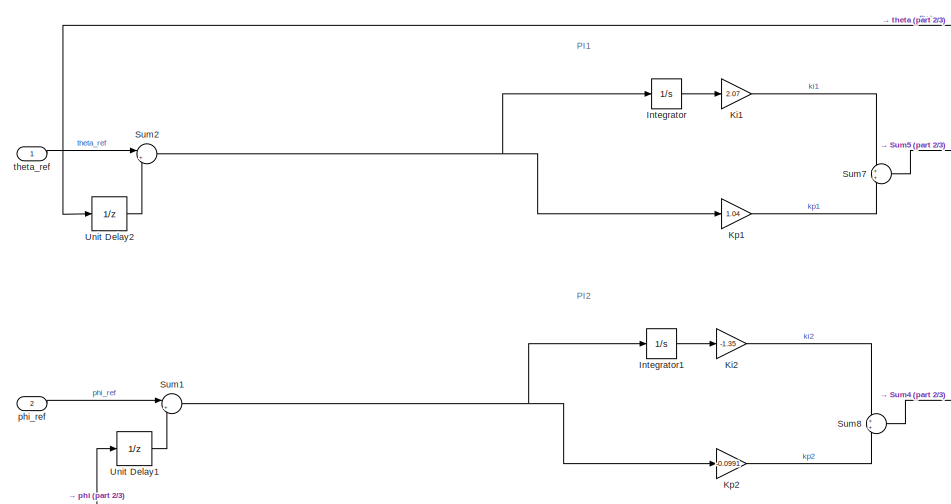
[diagram: root canvas - part 1/3, top left region]
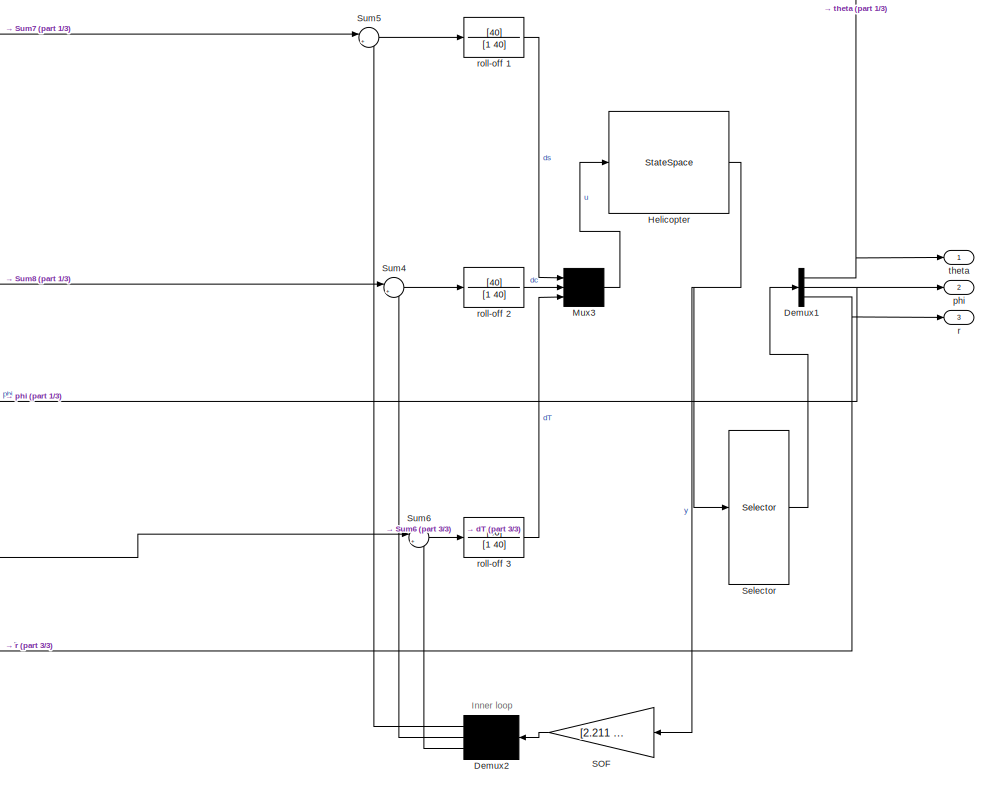
[diagram: root canvas - part 2/3, right side, full height]
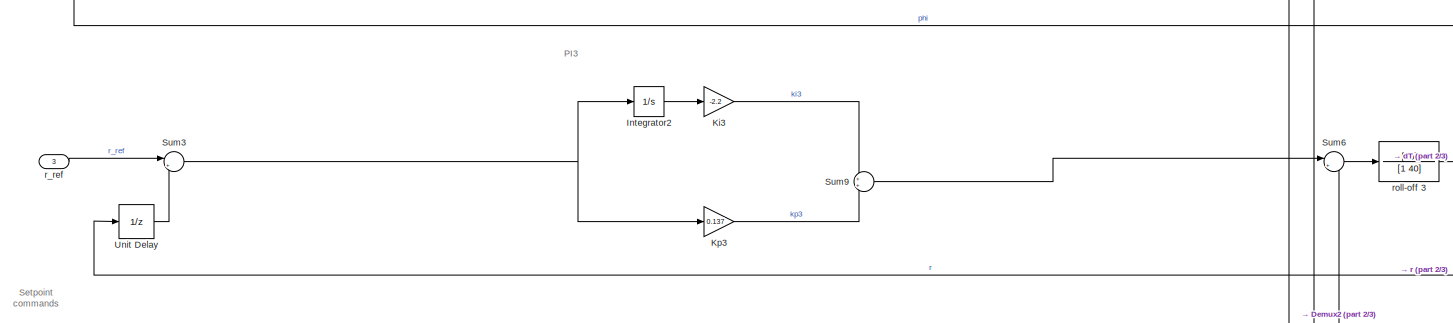
[diagram: root canvas - part 3/3, full width, bottom band]
MODEL slx_b886ddc78d11
KIND model
CONFIG AbsTol = auto
CONFIG EnableMultiTasking = on
CONFIG FixedStep = auto
CONFIG MaxStep = auto
CONFIG MinStep = auto
CONFIG RelTol = 1e-3
CONFIG SampleTimeConstraint = Unconstrained
CONFIG Solver = ode45
CONFIG SolverName = ode45
CONFIG StartTime = 0.0
CONFIG StopTime = 20
WORKSPACE source: mxarray member
WORKSPACE A = [-0.0191 0.0136 0.0405 0 0.001 0.013 0 0.002 0.017 -0.2994 -0.0026 0 ... (64 elements, 8x8)]
WORKSPACE B = [-10.3456 -0.7293 27.09 0 -1.082 -27.2884 0 -4.8969 1.0793 0.0755 -4.7239 0 ... (24 elements, 8x3)]
WORKSPACE Cmeas = [0 0 0 0 0 0 0 0 0 0 0 0 ... (40 elements, 5x8)]
BLOCK [Demux] Demux1
  Outputs = 3
  Ports = [1, 3]
BLOCK [Demux] Demux2
  DisplayOption = none
  Outputs = 3
  Ports = [1, 3]
BLOCK [StateSpace] Helicopter
  A = A
  B = B
  C = Cmeas
  D = zeros(5,3)
  InitialCondition = 0
  Ports = [1, 1]
BLOCK [Integrator] Integrator
  Ports = [1, 1]
BLOCK [Integrator] Integrator1
  Ports = [1, 1]
BLOCK [Integrator] Integrator2
  Ports = [1, 1]
BLOCK [Gain] Ki1
  Gain = 2.07
BLOCK [Gain] Ki2
  Gain = -1.35
BLOCK [Gain] Ki3
  Gain = -2.2
BLOCK [Gain] Kp1
  Gain = 1.04
BLOCK [Gain] Kp2
  Gain = -0.0991
BLOCK [Gain] Kp3
  Gain = 0.137
BLOCK [Mux] Mux3
  DisplayOption = signals
  Inputs = 3
  Ports = [3, 1]
BLOCK [Gain] SOF
  Gain = [2.211 -0.31 -0.00336 0.7854 -0.01518;\n  -0.1923  -1.291 0.0182  -0.08502 -0.1195;\n -0.01936  -0.01205 -1.895 -0.004121 0.06797]
  Multiplication = Matrix(K*u) (u vector)
BLOCK [Selector] Selector
  IndexOptions = Index vector (dialog)
  Indices = [1 2 3]
  InputPortWidth = 3
  OutputSizes = 1
  Ports = [1, 1]
BLOCK [Sum] Sum1
  Inputs = |+-
  Ports = [2, 1]
BLOCK [Sum] Sum2
  Inputs = |+-
  Ports = [2, 1]
BLOCK [Sum] Sum3
  Inputs = |+-
  Ports = [2, 1]
BLOCK [Sum] Sum4
  Inputs = |+-
  Ports = [2, 1]
BLOCK [Sum] Sum5
  Inputs = |+-
  Ports = [2, 1]
BLOCK [Sum] Sum6
  Inputs = |+-
  Ports = [2, 1]
BLOCK [Sum] Sum7
  Ports = [2, 1]
BLOCK [Sum] Sum8
  Ports = [2, 1]
BLOCK [Sum] Sum9
  Ports = [2, 1]
BLOCK [UnitDelay] Unit Delay
  HasFrameUpgradeWarning = on
  SampleTime = -1
BLOCK [UnitDelay] Unit Delay1
  HasFrameUpgradeWarning = on
  SampleTime = -1
BLOCK [UnitDelay] Unit Delay2
  HasFrameUpgradeWarning = on
  SampleTime = -1
BLOCK [Outport] phi
  Port = 2
BLOCK [Inport] phi_ref
  Port = 2
BLOCK [Outport] r
  Port = 3
BLOCK [Inport] r_ref
  Port = 3
BLOCK [TransferFcn] roll-off 1
  Denominator = [1 40]
  Numerator = [40]
BLOCK [TransferFcn] roll-off 2
  Denominator = [1 40]
  Numerator = [40]
BLOCK [TransferFcn] roll-off 3
  Denominator = [1 40]
  Numerator = [40]
BLOCK [Outport] theta
BLOCK [Inport] theta_ref
ANNOTATION (root): Inner loop
ANNOTATION (root): PI1
ANNOTATION (root): PI2
ANNOTATION (root): PI3
ANNOTATION (root): Setpoint commands
NET Demux1:1 -> Unit Delay2:1, theta:1
NET Demux1:2 -> Unit Delay1:1, phi:1
NET Demux1:3 -> Unit Delay:1, r:1
LINE Demux2:1 -> Sum5:2
LINE Demux2:2 -> Sum4:2
LINE Demux2:3 -> Sum6:2
NET Helicopter:1 -> SOF:1, Selector:1
LINE Integrator1:1 -> Ki2:1
LINE Integrator2:1 -> Ki3:1
LINE Integrator:1 -> Ki1:1
LINE Ki1:1 -> Sum7:1
LINE Ki2:1 -> Sum8:1
LINE Ki3:1 -> Sum9:1
LINE Kp1:1 -> Sum7:2
LINE Kp2:1 -> Sum8:2
LINE Kp3:1 -> Sum9:2
LINE Mux3:1 -> Helicopter:1
LINE SOF:1 -> Demux2:1
LINE Selector:1 -> Demux1:1
NET Sum1:1 -> Integrator1:1, Kp2:1
NET Sum2:1 -> Integrator:1, Kp1:1
NET Sum3:1 -> Integrator2:1, Kp3:1
LINE Sum4:1 -> roll-off 2:1
LINE Sum5:1 -> roll-off 1:1
LINE Sum6:1 -> roll-off 3:1
LINE Sum7:1 -> Sum5:1
LINE Sum8:1 -> Sum4:1
LINE Sum9:1 -> Sum6:1
LINE Unit Delay1:1 -> Sum1:2
LINE Unit Delay2:1 -> Sum2:2
LINE Unit Delay:1 -> Sum3:2
LINE phi_ref:1 -> Sum1:1
LINE r_ref:1 -> Sum3:1
LINE roll-off 1:1 -> Mux3:1
LINE roll-off 2:1 -> Mux3:2
LINE roll-off 3:1 -> Mux3:3
LINE theta_ref:1 -> Sum2:1
note: NET lines group one-source signal fan-out (src -> all destinations, sorted); 1:1 wires keep LINE
